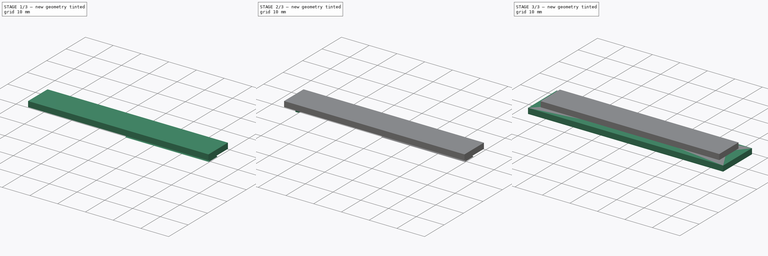
[diagram: build sequence overview — one tinted view per stage of 3, left to right]
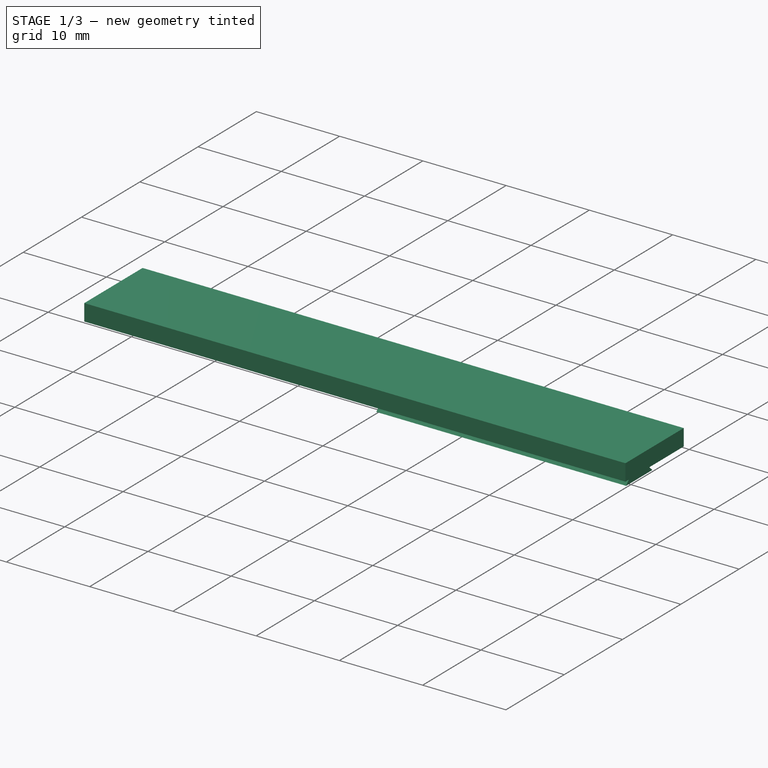
[diagram: stage 1 of 3 — iso view after this stage's code; geometry added in this stage tinted green]
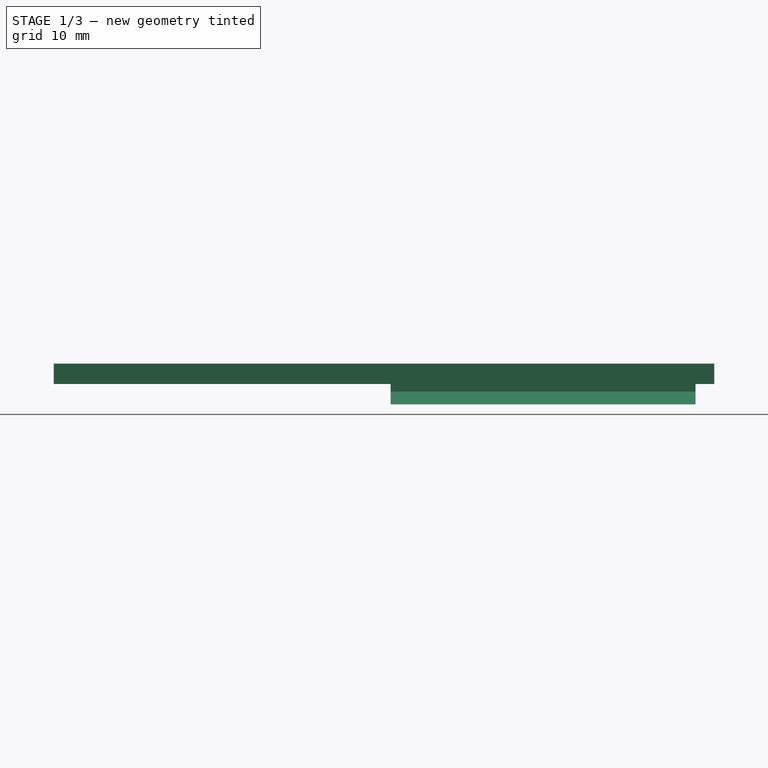
[diagram: stage 1 of 3 — front view after this stage's code; geometry added in this stage tinted green]
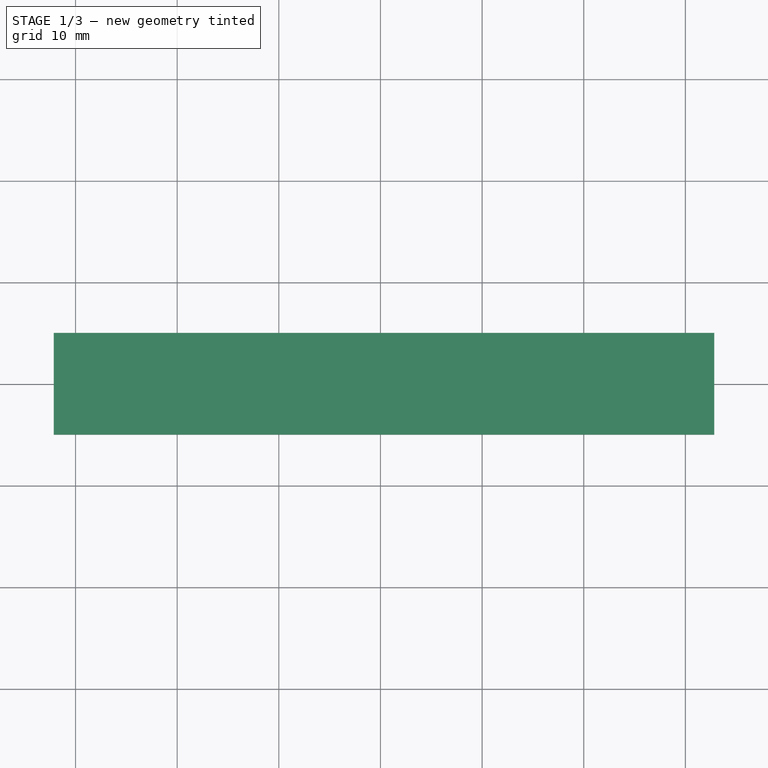
[diagram: stage 1 of 3 — top view after this stage's code; geometry added in this stage tinted green]
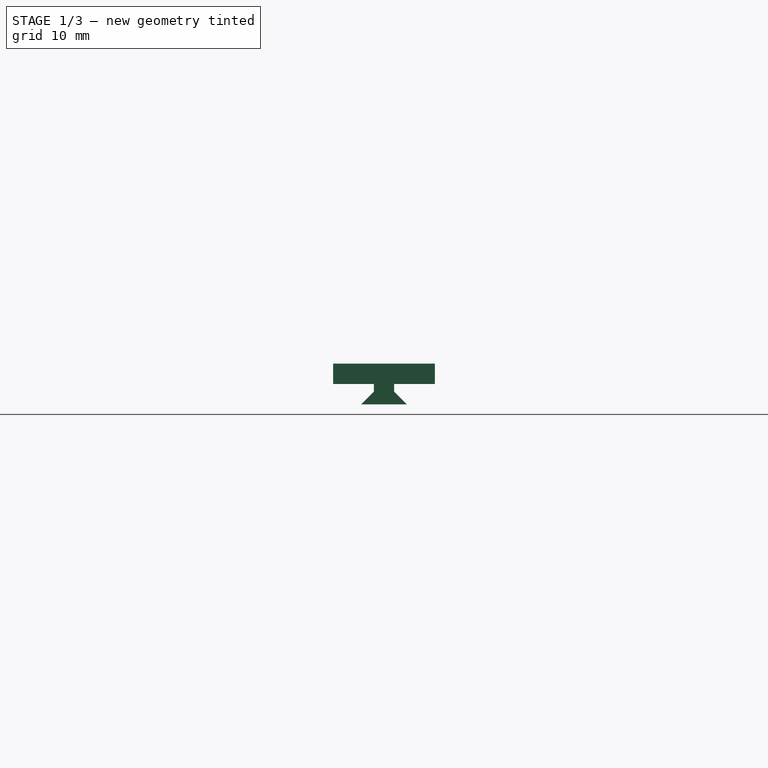
[diagram: stage 1 of 3 — right view after this stage's code; geometry added in this stage tinted green]
FCSTD DOCUMENT  (FreeCAD 1.0R39109 (Git))
Label: top_accessory_template
License: All rights reserved
LicenseURL: http://en.wikipedia.org/wiki/All_rights_reserved
objects: Sketcher::SketchObject×4, PartDesign::Pad×4, PartDesign::Plane×3, PartDesign::Body×2, PartDesign::Chamfer×1
note: 28 computed .brp shape members not serialized (recipe doc carries the construction recipe); baked Part::Feature solids carry a one-line shape summary decoded from their .brp

FEATURE [PartDesign::Body] Body  label="test_piece"
  AllowCompound = false
  Group = -> [Sketch,Pad,Chamfer]
  Origin = -> Origin
  Tip = -> Chamfer
FEATURE [PartDesign::Plane] DatumPlane
  AttachmentOffset = pos=(0,0,31) rot=(0,0,1;0rad)
  AttachmentSupport = -> [YZ_Plane001]
  Length = 60
  MapMode = 5
  Placement = pos=(31,-3.5002e-12,3.5002e-12) rot=(0.57735,0.57735,0.57735;2.0944rad)
  ResizeMode = 1
  Width = 60
FEATURE [Sketcher::SketchObject] Sketch001
  ArcFitTolerance = 0
  AttachmentSupport = -> [DatumPlane]
  FullyConstrained = false
  MakeInternals = false
  MapMode = 5
  Placement = pos=(31,-3.5002e-12,3.5002e-12) rot=(0.57735,0.57735,0.57735;2.0944rad)
  sketch-geometry (6):
    g0: LineSegment StartX=-1 StartY=2 StartZ=0 EndX=1 EndY=2 EndZ=0
    g1: LineSegment StartX=1 StartY=2 StartZ=0 EndX=1 EndY=1.25 EndZ=0
    g2: LineSegment StartX=1 StartY=1.25 StartZ=0 EndX=2.25 EndY=0 EndZ=0
    g3: LineSegment StartX=2.25 StartY=0 StartZ=0 EndX=-2.25 EndY=0 EndZ=0
    g4: LineSegment StartX=-2.25 StartY=0 StartZ=0 EndX=-1 EndY=1.25 EndZ=0
    g5: LineSegment StartX=-1 StartY=1.25 StartZ=0 EndX=-1 EndY=2 EndZ=0
  constraints (18):
    c: Horizontal(g0)
    c: Coincident(g0,g1)
    c: Vertical(g1)
    c: Coincident(g1,g2)
    c: PointOnObject(g2,g-1)
    c: Coincident(g2,g3)
    c: Horizontal(g3)
    c: Coincident(g3,g4)
    c: Coincident(g4,g5)
    c: Coincident(g5,g0)
    c: Vertical(g5)
    c: Symmetric(g0,g0,g-2)
    c: DistanceX(g0,g0) = 2
    c: DistanceY(g2,g0) = 2
    c: Angle(g2,g3) = 0.785398
    c: Symmetric(g4,g1,g-2)
    c: Equal(g4,g2)
    c: DistanceX(g3,g2) = 4.5
FEATURE [PartDesign::Pad] Pad001
  AllowMultiFace = false
  Direction = (1,1,1)
  Length = 30
  Length2 = 100
  Placement = pos=(31,0,0) rot=(0.57735,0.57735,0.57735;2.0944rad)
  Profile = -> Sketch001
  Suppressed = false
  Type = 0
FEATURE [PartDesign::Plane] DatumPlane001
  AttachmentSupport = -> [Pad001]
  Length = 60
  MapMode = 5
  Placement = pos=(31,-2e-16,2) rot=(0,0,-1;1.5708rad)
  ResizeMode = 1
  Width = 60
FEATURE [Sketcher::SketchObject] Sketch002
  ArcFitTolerance = 0
  AttachmentSupport = -> [DatumPlane001]
  FullyConstrained = false
  MakeInternals = false
  MapMode = 5
  Placement = pos=(31,-2e-16,2) rot=(0,0,-1;1.5708rad)
  sketch-geometry (4):
    g0: LineSegment StartX=-5 StartY=31.8482 StartZ=0 EndX=5 EndY=31.8482 EndZ=0
    g1: LineSegment StartX=5 StartY=31.8482 StartZ=0 EndX=5 EndY=-33.1518 EndZ=0
    g2: LineSegment StartX=5 StartY=-33.1518 StartZ=0 EndX=-5 EndY=-33.1518 EndZ=0
    g3: LineSegment StartX=-5 StartY=-33.1518 StartZ=0 EndX=-5 EndY=31.8482 EndZ=0
  constraints (11):
    c: Coincident(g0,g1)
    c: Coincident(g1,g2)
    c: Coincident(g2,g3)
    c: Coincident(g3,g0)
    c: Horizontal(g0)
    c: Horizontal(g2)
    c: Vertical(g1)
    c: Vertical(g3)
    c: Symmetric(g0,g0,g-2)
    c: DistanceY(g1,g0) = 65
    c: DistanceX(g0,g0) = 10
FEATURE [PartDesign::Pad] Pad002
  AllowMultiFace = false
  BaseFeature = -> Pad001
  Direction = (1,1,1)
  Length = 2
  Length2 = 100
  Placement = pos=(31,0,0) rot=(0.57735,0.57735,0.57735;2.0944rad)
  Profile = -> Sketch002
  Suppressed = false
  Type = 0
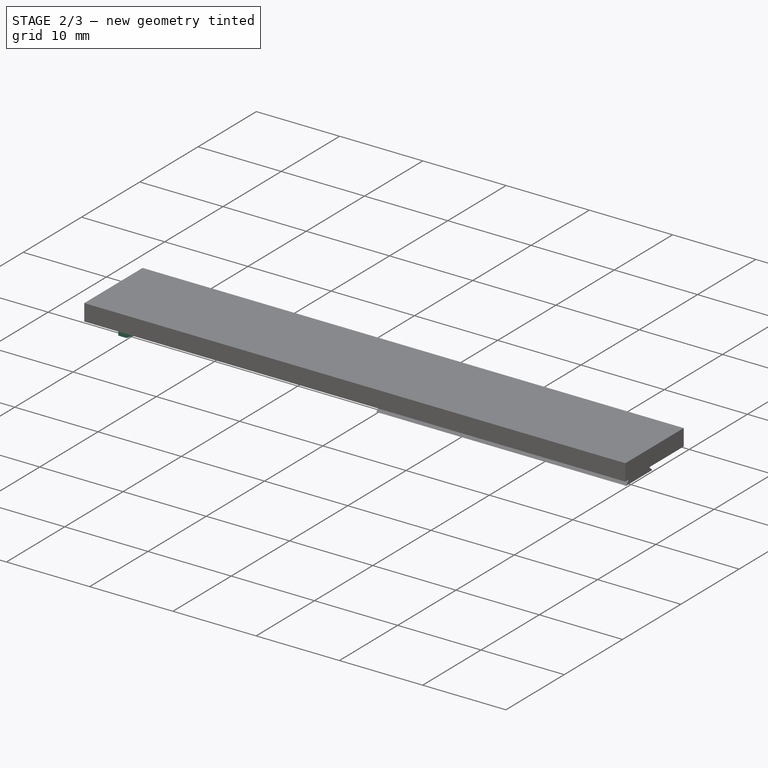
[diagram: stage 2 of 3 — iso view after this stage's code; geometry added in this stage tinted green]
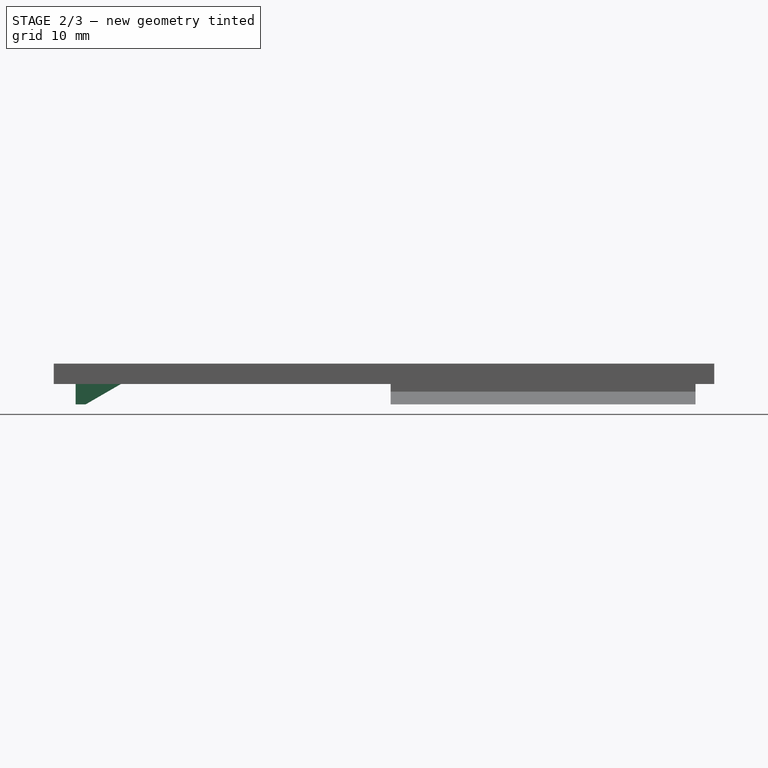
[diagram: stage 2 of 3 — front view after this stage's code; geometry added in this stage tinted green]
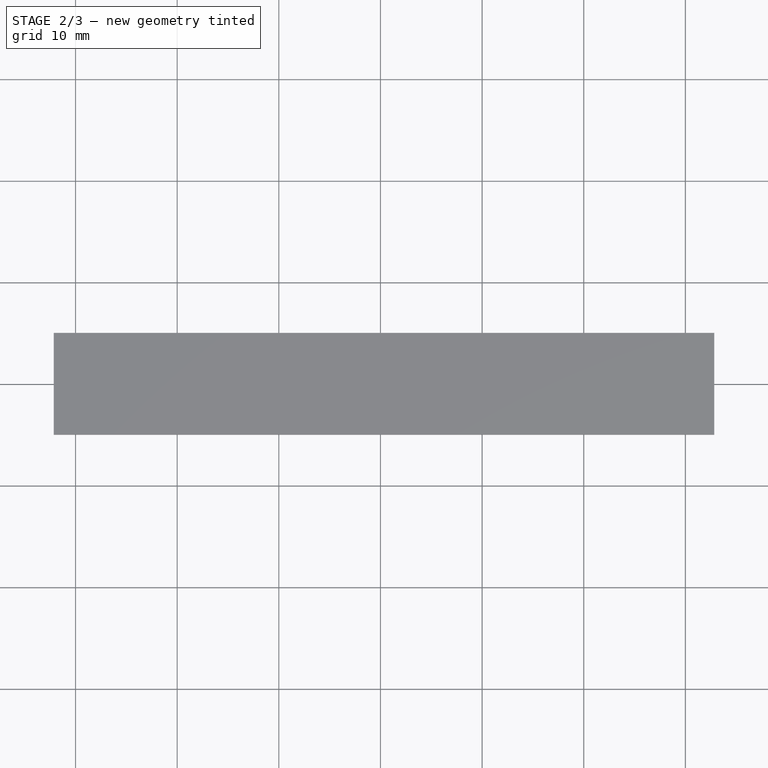
[diagram: stage 2 of 3 — top view after this stage's code; geometry added in this stage tinted green]
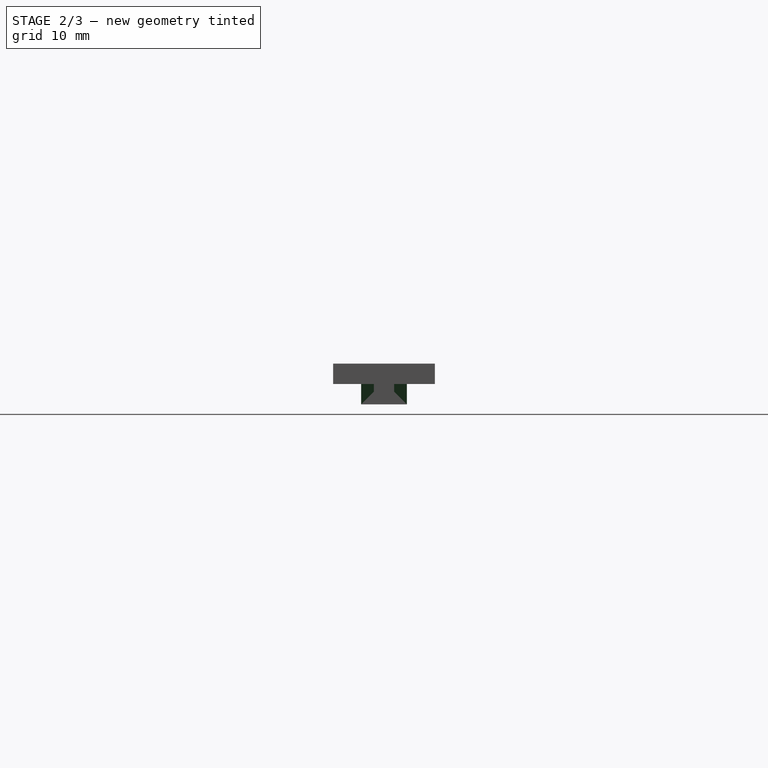
[diagram: stage 2 of 3 — right view after this stage's code; geometry added in this stage tinted green]
FEATURE [PartDesign::Plane] DatumPlane002
  AttachmentSupport = -> [XZ_Plane001]
  Length = 60
  MapMode = 5
  Placement = pos=(0,0,0) rot=(1,0,0;1.5708rad)
  ResizeMode = 1
  Width = 60
FEATURE [Sketcher::SketchObject] Sketch003
  ArcFitTolerance = 0
  AttachmentSupport = -> [DatumPlane002]
  FullyConstrained = false
  MakeInternals = false
  MapMode = 5
  Placement = pos=(0,0,0) rot=(1,0,0;1.5708rad)
  sketch-geometry (4):
    g0: LineSegment StartX=0 StartY=2 StartZ=0 EndX=0 EndY=0 EndZ=0
    g1: LineSegment StartX=0 StartY=0 StartZ=0 EndX=1 EndY=0 EndZ=0
    g2: LineSegment StartX=1 StartY=0 StartZ=0 EndX=4.4641 EndY=2 EndZ=0
    g3: LineSegment StartX=4.4641 StartY=2 StartZ=0 EndX=0 EndY=2 EndZ=0
  constraints (12):
    c: PointOnObject(g0,g-2)
    c: Vertical(g0)
    c: Coincident(g0,g1)
    c: Horizontal(g1)
    c: Coincident(g1,g2)
    c: Coincident(g2,g3)
    c: Coincident(g3,g0)
    c: Horizontal(g3)
    c: DistanceY(g-1,g0) = 2
    c: DistanceY(g0,g0) = 2
    c: Angle(g3,g2) = 0.523599
    c: DistanceX(g1,g1) = 1
FEATURE [PartDesign::Pad] Pad003
  AllowMultiFace = false
  BaseFeature = -> Pad002
  Direction = (1,1,1)
  Length = 4.5
  Length2 = 100
  Midplane = true
  Placement = pos=(31,0,0) rot=(0.57735,0.57735,0.57735;2.0944rad)
  Profile = -> Sketch003
  Suppressed = false
  Type = 0
FEATURE [PartDesign::Body] Body001
  AllowCompound = false
  Group = -> [Sketch001,Pad001,DatumPlane,DatumPlane001,Sketch002,Pad002,DatumPlane002,Sketch003,Pad003]
  Origin = -> Origin001
  Tip = -> Pad003
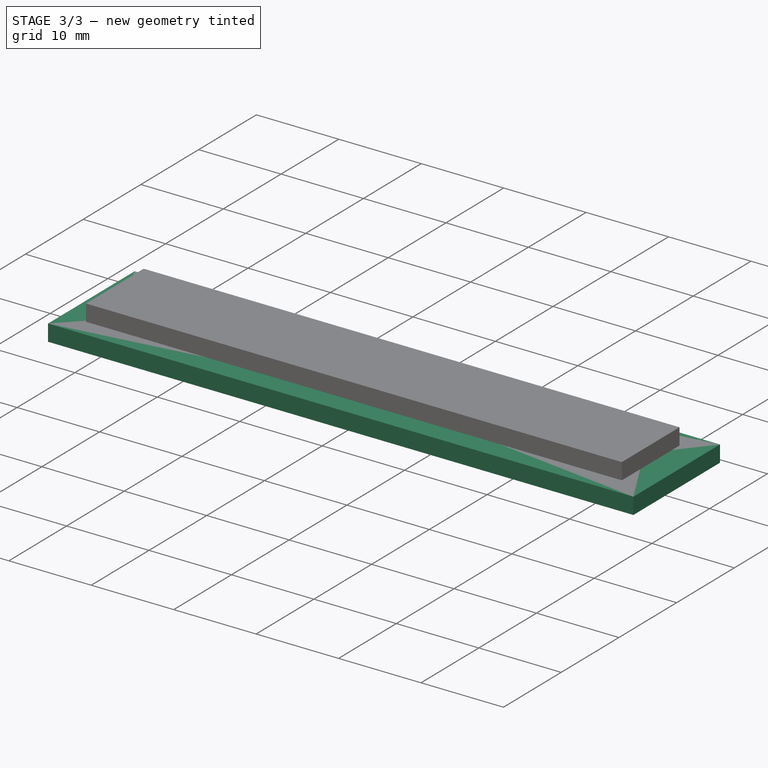
[diagram: stage 3 of 3 — iso view after this stage's code; geometry added in this stage tinted green]
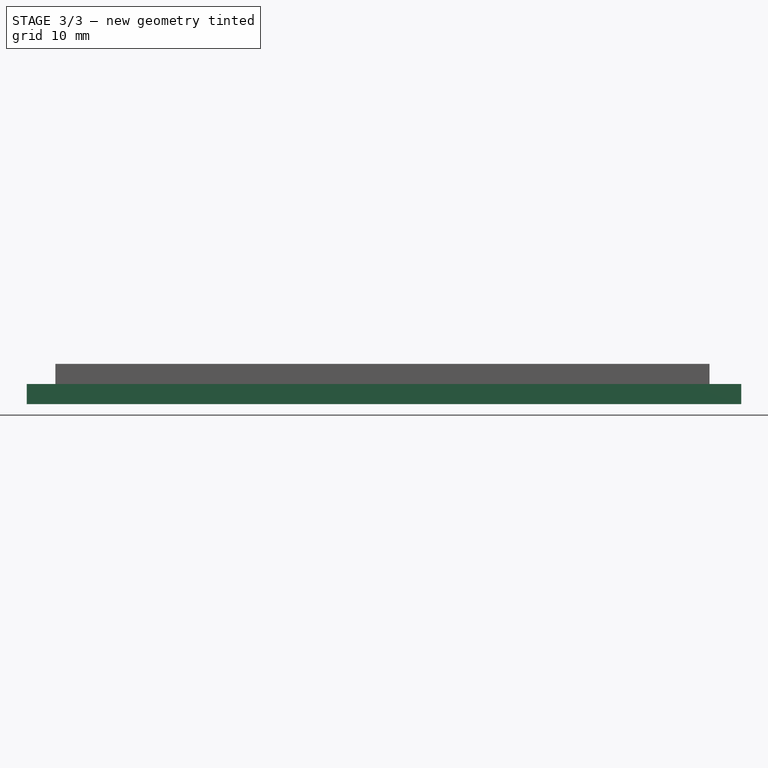
[diagram: stage 3 of 3 — front view after this stage's code; geometry added in this stage tinted green]
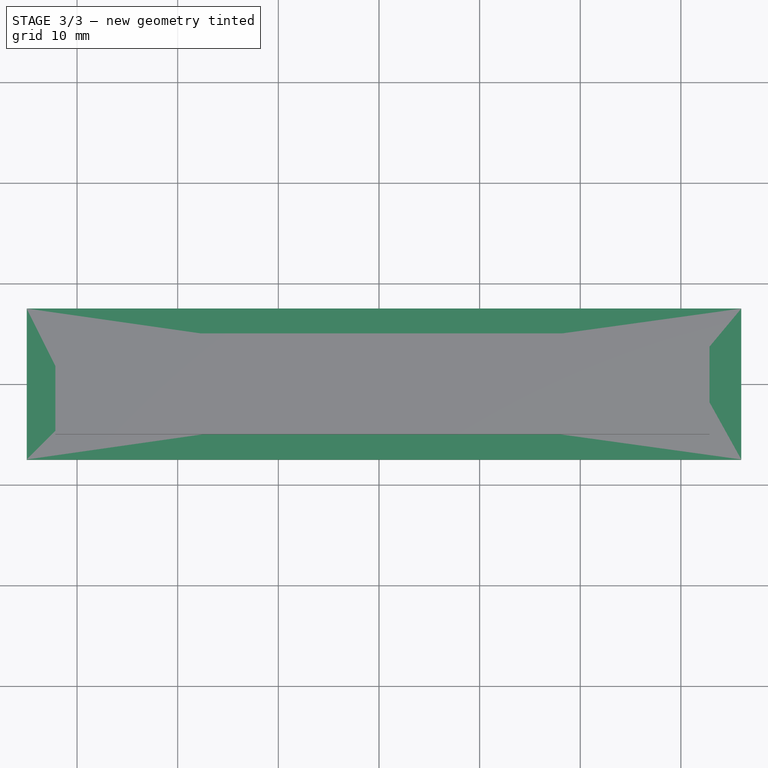
[diagram: stage 3 of 3 — top view after this stage's code; geometry added in this stage tinted green]
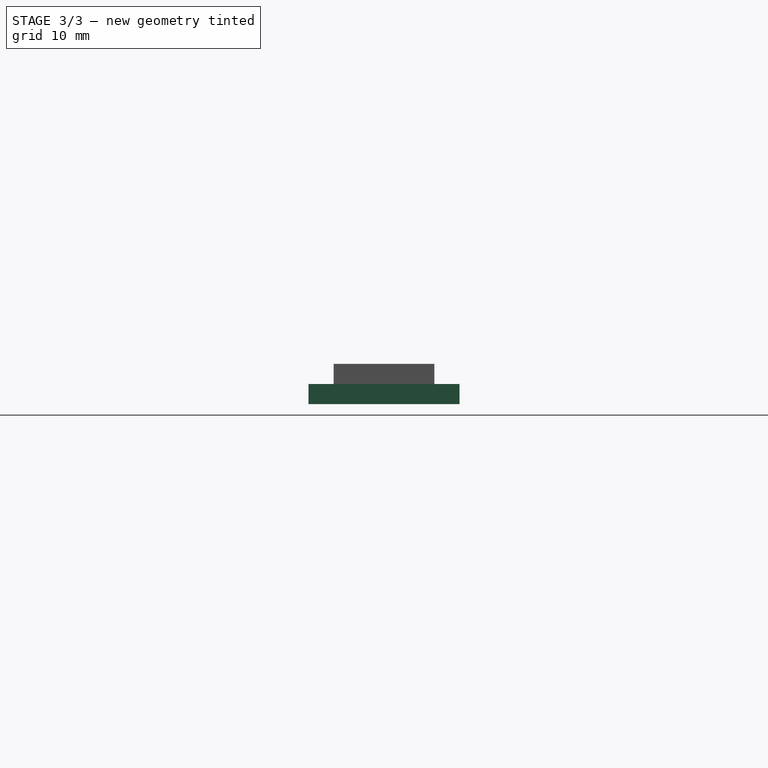
[diagram: stage 3 of 3 — right view after this stage's code; geometry added in this stage tinted green]
FEATURE [Sketcher::SketchObject] Sketch
  ArcFitTolerance = 0
  AttachmentSupport = -> [XY_Plane]
  FullyConstrained = false
  MakeInternals = false
  MapMode = 5
  sketch-geometry (12):
    g0: LineSegment StartX=0 StartY=2.5 StartZ=0 EndX=30 EndY=2.5 EndZ=0
    g1: LineSegment StartX=30 StartY=2.5 StartZ=0 EndX=31 EndY=1.5 EndZ=0
    g2: LineSegment StartX=30 StartY=-2.5 StartZ=0 EndX=0 EndY=-2.5 EndZ=0
    g3: LineSegment StartX=0 StartY=-2.5 StartZ=0 EndX=0 EndY=2.5 EndZ=0
    g4: LineSegment StartX=31 StartY=1.5 StartZ=0 EndX=61 EndY=1.5 EndZ=0
    g5: LineSegment StartX=61 StartY=1.5 StartZ=0 EndX=61 EndY=-1.5 EndZ=0
    g6: LineSegment StartX=61 StartY=-1.5 StartZ=0 EndX=31 EndY=-1.5 EndZ=0
    g7: LineSegment StartX=31 StartY=-1.5 StartZ=0 EndX=30 EndY=-2.5 EndZ=0
    g8: LineSegment StartX=-5 StartY=7.5 StartZ=0 EndX=66 EndY=7.5 EndZ=0
    g9: LineSegment StartX=66 StartY=7.5 StartZ=0 EndX=66 EndY=-7.5 EndZ=0
    g10: LineSegment StartX=66 StartY=-7.5 StartZ=0 EndX=-5 EndY=-7.5 EndZ=0
    g11: LineSegment StartX=-5 StartY=-7.5 StartZ=0 EndX=-5 EndY=7.5 EndZ=0
  constraints (35):
    c: Coincident(g0,g1)
    c: Coincident(g2,g3)
    c: Coincident(g3,g0)
    c: Horizontal(g0)
    c: Horizontal(g2)
    c: Vertical(g3)
    c: PointOnObject(g0,g-2)
    c: Coincident(g4,g5)
    c: Coincident(g5,g6)
    c: Coincident(g6,g7)
    c: Horizontal(g4)
    c: Horizontal(g6)
    c: Vertical(g5)
    c: Coincident(g2,g7)
    c: Coincident(g1,g4)
    c: Symmetric(g4,g5,g-1)
    c: Symmetric(g0,g2,g-1)
    c: DistanceX(g0,g0) = 30
    c: Equal(g7,g1)
    c: DistanceY(g3,g3) = 5
    c: DistanceY(g5,g5) = 3
    c: Equal(g4,g0)
    c: Angle(g4,g1) = 2.35619
    c: Coincident(g8,g9)
    c: Coincident(g9,g10)
    c: Coincident(g10,g11)
    c: Coincident(g11,g8)
    c: Horizontal(g8)
    c: Horizontal(g10)
    c: Vertical(g9)
    c: Vertical(g11)
    c: Symmetric(g9,g8,g-1)
    c: DistanceX(g5,g9) = 5
    c: DistanceX(g10,g2) = 5
    c: DistanceY(g10,g2) = 5
FEATURE [PartDesign::Pad] Pad
  AllowMultiFace = false
  Direction = (1,1,1)
  Length = 2
  Length2 = 100
  Profile = -> Sketch
  Suppressed = false
  Type = 0
FEATURE [PartDesign::Chamfer] Chamfer
  Angle = 45
  Base = -> Pad [Edge24,Edge30]
  BaseFeature = -> Pad
  ChamferType = 0
  FlipDirection = false
  Size = 1
  Size2 = 1
  SupportTransform = false
  Suppressed = false
  UseAllEdges = false
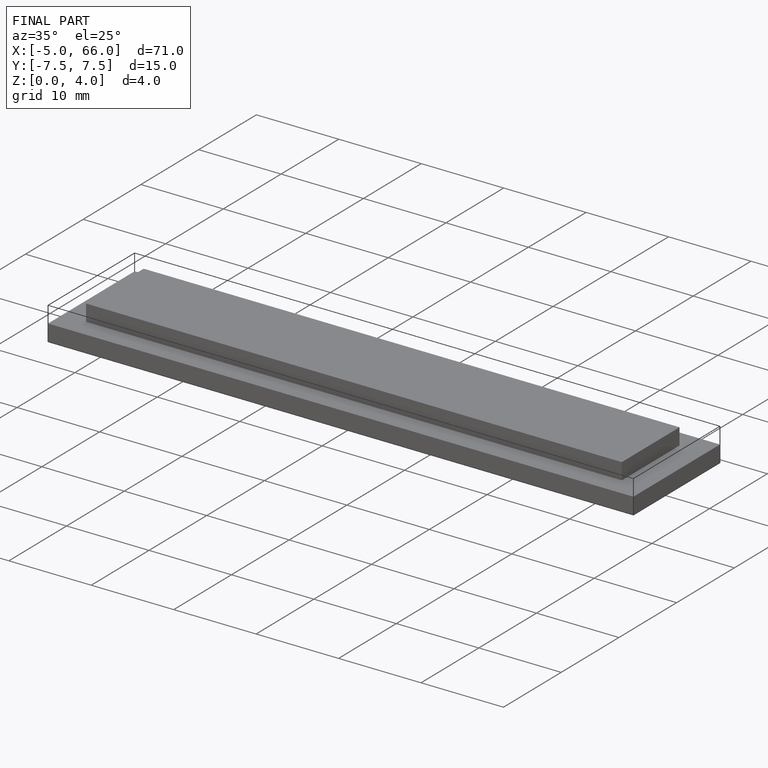
[diagram: finished part — iso view with bounding-box wireframe]
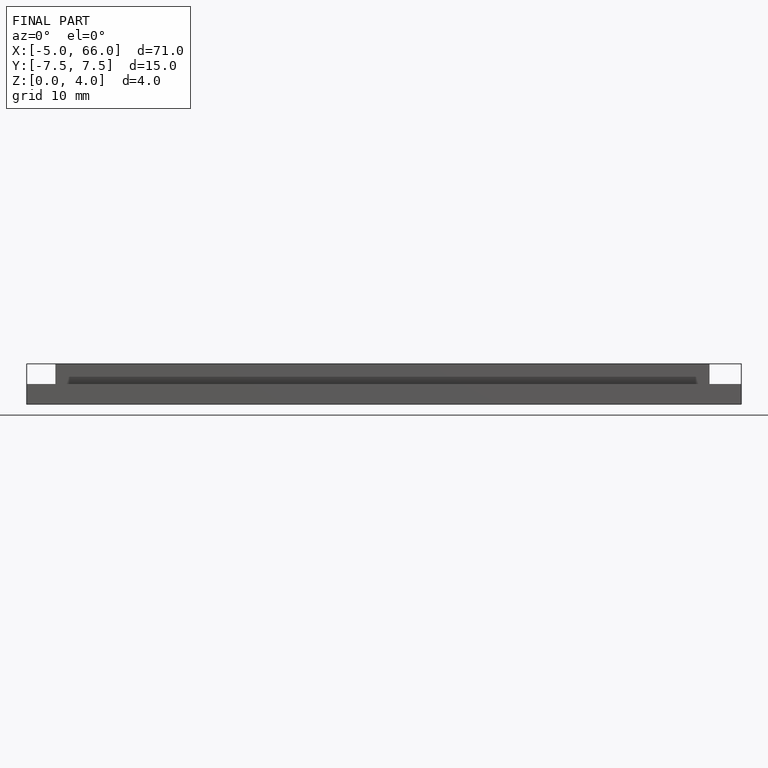
[diagram: finished part — front view with bounding-box wireframe]
